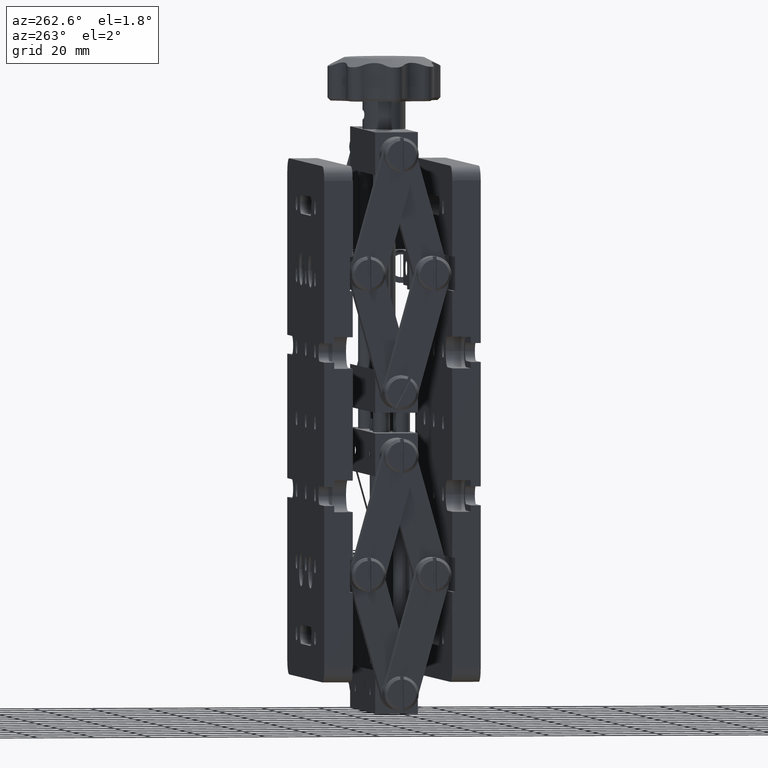
[diagram: clean part render]
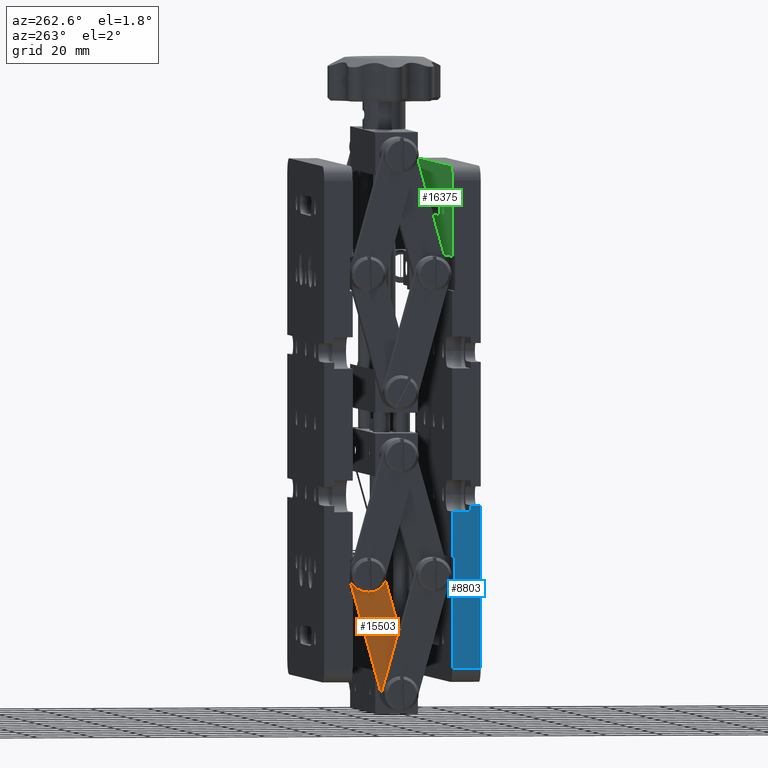
[diagram: same view with three faces highlighted in distinct colors, each labeled with its STEP entity id]
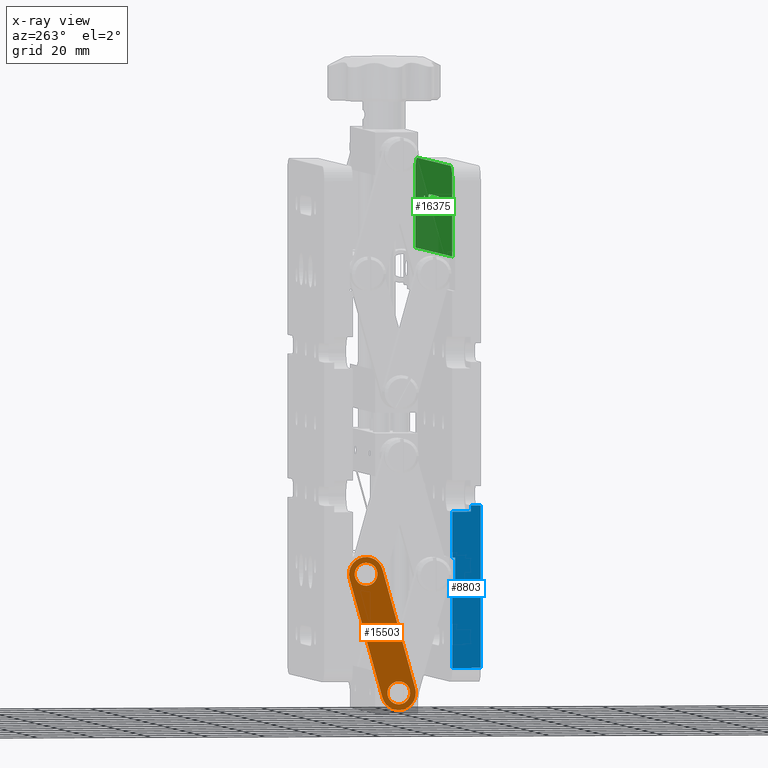
[diagram: x-ray of the same camera — body ghosted, the three highlighted faces saturated]
A machine part, auxiliary view with three faces highlighted in distinct colors.
The next image is the same camera in x-ray (body ghosted, the three faces saturated) — at least one of them is partly hidden behind the body in this view.
Their STEP definitions:

[orange] entity #15503 — the highlighted planar face has unit normal (-1, 0, -0).
#555 = EDGE_LOOP ( 'NONE', ( #16453, #11934, #15580, #12085, #6058 ) ) ;
#707 = FACE_OUTER_BOUND ( 'NONE', #555, .T. ) ;
#1246 = CARTESIAN_POINT ( 'NONE',  ( -39.99999999999983700, 27.93023255813719900, -56.35429599542309400 ) ) ;
#1317 = CARTESIAN_POINT ( 'NONE',  ( -39.99999999999970200, 11.71855600686484400, -92.32903078801037100 ) ) ;
#1333 = AXIS2_PLACEMENT_3D ( 'NONE', #5526, #3880, #9524 ) ;
#1615 = FACE_BOUND ( 'NONE', #15518, .T. ) ;
#2388 = CIRCLE ( 'NONE', #14121, 6.000000000000135000 ) ;
#3880 = DIRECTION ( 'NONE',  ( -1.000000000000000000, 1.536459749462286500E-016, -2.605466527482687500E-016 ) ) ;
#3909 = CARTESIAN_POINT ( 'NONE',  ( -39.99999999999989300, 23.28144399313487500, -95.53833311359112200 ) ) ;
#4029 = DIRECTION ( 'NONE',  ( -1.000000000000000000, 1.536459749462286500E-016, -2.605466527482687500E-016 ) ) ;
#4770 = DIRECTION ( 'NONE',  ( 2.099646146845540900E-016, -0.2674418604650561900, -0.9635739988558166300 ) ) ;
#4849 = DIRECTION ( 'NONE',  ( -1.000000000000000000, 1.536459749462286500E-016, -2.605466527482687500E-016 ) ) ;
#5209 = CIRCLE ( 'NONE', #1333, 4.000000000000085300 ) ;
#5244 = CARTESIAN_POINT ( 'NONE',  ( -39.99999999999968700, 34.78144399313254800, -54.10465116279010500 ) ) ;
#5459 = CARTESIAN_POINT ( 'NONE',  ( -39.99999999999983700, 28.99999999999744900, -52.49999999999975100 ) ) ;
#5526 = CARTESIAN_POINT ( 'NONE',  ( -39.99999999999965900, 17.49999999999981900, -93.93368195080088900 ) ) ;
#5564 = EDGE_LOOP ( 'NONE', ( #19756, #7580 ) ) ;
#5877 = CARTESIAN_POINT ( 'NONE',  ( -39.99999999999970200, 11.71855600686484400, -92.32903078801037100 ) ) ;
#6028 = CIRCLE ( 'NONE', #17884, 4.000000000000085300 ) ;
#6058 = ORIENTED_EDGE ( 'NONE', *, *, #16060, .T. ) ;
#6800 = CARTESIAN_POINT ( 'NONE',  ( -39.99999999999976600, 23.21855600686244300, -50.89534883720952500 ) ) ;
#7051 = VERTEX_POINT ( 'NONE', #14666 ) ;
#7182 = DIRECTION ( 'NONE',  ( 0.0000000000000000000, 0.2674418604650565200, 0.9635739988558166300 ) ) ;
#7580 = ORIENTED_EDGE ( 'NONE', *, *, #24089, .F. ) ;
#7834 = VERTEX_POINT ( 'NONE', #13309 ) ;
#7862 = EDGE_CURVE ( 'NONE', #7834, #10975, #9904, .T. ) ;
#7921 = DIRECTION ( 'NONE',  ( -1.000000000000000000, 1.536459749462286500E-016, -2.605466527482687500E-016 ) ) ;
#8196 = DIRECTION ( 'NONE',  ( -2.099646146845540700E-016, 0.2674418604650561400, 0.9635739988558166300 ) ) ;
#9457 = DIRECTION ( 'NONE',  ( -1.000000000000000000, 1.536459749462286500E-016, -2.605466527482687500E-016 ) ) ;
#9524 = DIRECTION ( 'NONE',  ( 0.0000000000000000000, 0.2674418604650565200, 0.9635739988558166300 ) ) ;
#9904 = CIRCLE ( 'NONE', #17069, 6.000000000000135000 ) ;
#10020 = EDGE_CURVE ( 'NONE', #14811, #24618, #13242, .T. ) ;
#10463 = VECTOR ( 'NONE', #21847, 1000.000000000000100 ) ;
#10514 = AXIS2_PLACEMENT_3D ( 'NONE', #14520, #24096, #8196 ) ;
#10916 = EDGE_CURVE ( 'NONE', #7051, #19568, #23586, .T. ) ;
#10975 = VERTEX_POINT ( 'NONE', #1317 ) ;
#11750 = DIRECTION ( 'NONE',  ( -1.000000000000000000, 1.536459749462286500E-016, -2.605466527482687500E-016 ) ) ;
#11807 = CARTESIAN_POINT ( 'NONE',  ( -39.99999999999965900, 17.49999999999981900, -93.93368195080088900 ) ) ;
#11863 = AXIS2_PLACEMENT_3D ( 'NONE', #5459, #9457, #13444 ) ;
#11934 = ORIENTED_EDGE ( 'NONE', *, *, #15659, .T. ) ;
#12085 = ORIENTED_EDGE ( 'NONE', *, *, #7862, .T. ) ;
#12563 = CARTESIAN_POINT ( 'NONE',  ( -39.99999999999983700, 28.99999999999744900, -52.49999999999975100 ) ) ;
#13085 = DIRECTION ( 'NONE',  ( -1.000000000000000000, 1.536459749462286500E-016, -2.605466527482687500E-016 ) ) ;
#13242 = CIRCLE ( 'NONE', #20475, 6.000000000000127900 ) ;
#13309 = CARTESIAN_POINT ( 'NONE',  ( -39.99999999999965900, 15.89534883720947900, -99.71512594393578900 ) ) ;
#13444 = DIRECTION ( 'NONE',  ( 0.0000000000000000000, 0.2674418604650565200, 0.9635739988558166300 ) ) ;
#14121 = AXIS2_PLACEMENT_3D ( 'NONE', #11807, #7921, #21882 ) ;
#14520 = CARTESIAN_POINT ( 'NONE',  ( -39.99999999999983700, 28.99999999999744900, -52.49999999999975100 ) ) ;
#14666 = CARTESIAN_POINT ( 'NONE',  ( -39.99999999999965900, 18.56976744186006600, -90.07938595537753200 ) ) ;
#14811 = VERTEX_POINT ( 'NONE', #6800 ) ;
#15503 = ADVANCED_FACE ( 'NONE', ( #1615, #21468, #707 ), #18179, .T. ) ;
#15518 = EDGE_LOOP ( 'NONE', ( #21895, #23142 ) ) ;
#15580 = ORIENTED_EDGE ( 'NONE', *, *, #25219, .T. ) ;
#15659 = EDGE_CURVE ( 'NONE', #24618, #23550, #20143, .T. ) ;
#16060 = EDGE_CURVE ( 'NONE', #10975, #14811, #18869, .T. ) ;
#16329 = CIRCLE ( 'NONE', #11863, 4.000000000000085300 ) ;
#16453 = ORIENTED_EDGE ( 'NONE', *, *, #10020, .T. ) ;
#17002 = VERTEX_POINT ( 'NONE', #1246 ) ;
#17069 = AXIS2_PLACEMENT_3D ( 'NONE', #25576, #4029, #25747 ) ;
#17244 = CARTESIAN_POINT ( 'NONE',  ( -39.99999999999983700, 30.06976744185769600, -48.64570400457640200 ) ) ;
#17498 = CARTESIAN_POINT ( 'NONE',  ( -39.99999999999983700, 28.99999999999744900, -52.49999999999975100 ) ) ;
#17729 = EDGE_CURVE ( 'NONE', #20981, #17002, #16329, .T. ) ;
#17884 = AXIS2_PLACEMENT_3D ( 'NONE', #12563, #4849, #18757 ) ;
#18179 = PLANE ( 'NONE',  #10514 ) ;
#18510 = EDGE_CURVE ( 'NONE', #17002, #20981, #6028, .T. ) ;
#18757 = DIRECTION ( 'NONE',  ( 0.0000000000000000000, 0.2674418604650565200, 0.9635739988558166300 ) ) ;
#18869 = LINE ( 'NONE', #5877, #10463 ) ;
#19568 = VERTEX_POINT ( 'NONE', #23125 ) ;
#19756 = ORIENTED_EDGE ( 'NONE', *, *, #10916, .F. ) ;
#20143 = LINE ( 'NONE', #20855, #22309 ) ;
#20475 = AXIS2_PLACEMENT_3D ( 'NONE', #17498, #11750, #25501 ) ;
#20855 = CARTESIAN_POINT ( 'NONE',  ( -39.99999999999989300, 23.28144399313487500, -95.53833311359112200 ) ) ;
#20981 = VERTEX_POINT ( 'NONE', #17244 ) ;
#21154 = AXIS2_PLACEMENT_3D ( 'NONE', #22832, #13085, #7182 ) ;
#21468 = FACE_BOUND ( 'NONE', #5564, .T. ) ;
#21847 = DIRECTION ( 'NONE',  ( -2.099646146845540900E-016, 0.2674418604650561900, 0.9635739988558166300 ) ) ;
#21882 = DIRECTION ( 'NONE',  ( 0.0000000000000000000, 0.2674418604650562500, 0.9635739988558166300 ) ) ;
#21895 = ORIENTED_EDGE ( 'NONE', *, *, #17729, .F. ) ;
#22309 = VECTOR ( 'NONE', #4770, 1000.000000000000100 ) ;
#22832 = CARTESIAN_POINT ( 'NONE',  ( -39.99999999999965900, 17.49999999999981900, -93.93368195080088900 ) ) ;
#23125 = CARTESIAN_POINT ( 'NONE',  ( -39.99999999999965900, 16.43023255813956900, -97.78797794622423100 ) ) ;
#23142 = ORIENTED_EDGE ( 'NONE', *, *, #18510, .F. ) ;
#23550 = VERTEX_POINT ( 'NONE', #3909 ) ;
#23586 = CIRCLE ( 'NONE', #21154, 4.000000000000085300 ) ;
#24089 = EDGE_CURVE ( 'NONE', #19568, #7051, #5209, .T. ) ;
#24096 = DIRECTION ( 'NONE',  ( -1.000000000000000000, 1.536459749462303300E-016, -2.605466527482626900E-016 ) ) ;
#24618 = VERTEX_POINT ( 'NONE', #5244 ) ;
#25219 = EDGE_CURVE ( 'NONE', #23550, #7834, #2388, .T. ) ;
#25501 = DIRECTION ( 'NONE',  ( 0.0000000000000000000, 0.2674418604650565200, 0.9635739988558165200 ) ) ;
#25576 = CARTESIAN_POINT ( 'NONE',  ( -39.99999999999965900, 17.49999999999981900, -93.93368195080088900 ) ) ;
#25747 = DIRECTION ( 'NONE',  ( 0.0000000000000000000, 0.2674418604650562500, 0.9635739988558166300 ) ) ;

[blue] entity #8803 — the highlighted planar face has unit normal (1, -0, 0).
#152 = CARTESIAN_POINT ( 'NONE',  ( -50.00000000000000000, -0.9999999999999970000, -58.50000000000000000 ) ) ;
#693 = LINE ( 'NONE', #2976, #16507 ) ;
#898 = LINE ( 'NONE', #10192, #4902 ) ;
#1721 = ORIENTED_EDGE ( 'NONE', *, *, #8544, .T. ) ;
#1770 = VERTEX_POINT ( 'NONE', #14113 ) ;
#2283 = DIRECTION ( 'NONE',  ( -2.775557561562891800E-016, 3.227577155063918600E-016, 1.000000000000000000 ) ) ;
#2491 = VERTEX_POINT ( 'NONE', #18609 ) ;
#2976 = CARTESIAN_POINT ( 'NONE',  ( -50.00000000000000700, -12.99999999999999300, -28.30000000000001500 ) ) ;
#3100 = VECTOR ( 'NONE', #15868, 1000.000000000000000 ) ;
#3574 = CARTESIAN_POINT ( 'NONE',  ( -50.00000000000000700, 5.015101860681137500E-015, -30.49999999999965900 ) ) ;
#4309 = EDGE_CURVE ( 'NONE', #2491, #16266, #693, .T. ) ;
#4526 = CARTESIAN_POINT ( 'NONE',  ( -49.99999999999996400, 3.094693453418092900E-015, -90.00000000000004300 ) ) ;
#4680 = CARTESIAN_POINT ( 'NONE',  ( -49.99999999999997200, 3.256072311171288500E-015, -85.00000000000002800 ) ) ;
#4902 = VECTOR ( 'NONE', #12259, 1000.000000000000000 ) ;
#5053 = EDGE_CURVE ( 'NONE', #10877, #8434, #8369, .T. ) ;
#5115 = ORIENTED_EDGE ( 'NONE', *, *, #17714, .F. ) ;
#5238 = ORIENTED_EDGE ( 'NONE', *, *, #22315, .T. ) ;
#5934 = CARTESIAN_POINT ( 'NONE',  ( -49.99999999999997200, -9.999999999999998200, -85.00000000000002800 ) ) ;
#6138 = DIRECTION ( 'NONE',  ( 1.000000000000000000, -3.646332249122912700E-016, 4.317533984653388500E-016 ) ) ;
#6389 = PLANE ( 'NONE',  #16623 ) ;
#6526 = DIRECTION ( 'NONE',  ( 4.317533984653387500E-016, -3.227577155063918100E-016, -1.000000000000000000 ) ) ;
#6896 = EDGE_CURVE ( 'NONE', #23502, #23106, #7277, .T. ) ;
#7277 = LINE ( 'NONE', #22500, #8549 ) ;
#7333 = EDGE_LOOP ( 'NONE', ( #18288, #15837, #24997, #5238, #11285, #12496, #5115, #21641, #1721, #19880 ) ) ;
#7516 = LINE ( 'NONE', #19965, #24014 ) ;
#8369 = LINE ( 'NONE', #5934, #3100 ) ;
#8434 = VERTEX_POINT ( 'NONE', #25334 ) ;
#8460 = VERTEX_POINT ( 'NONE', #17418 ) ;
#8544 = EDGE_CURVE ( 'NONE', #1770, #10877, #19162, .T. ) ;
#8549 = VECTOR ( 'NONE', #14683, 1000.000000000000000 ) ;
#8803 = ADVANCED_FACE ( 'NONE', ( #21015 ), #6389, .F. ) ;
#9276 = VECTOR ( 'NONE', #24071, 1000.000000000000000 ) ;
#9277 = EDGE_CURVE ( 'NONE', #8460, #16266, #7516, .T. ) ;
#9286 = DIRECTION ( 'NONE',  ( -2.775557561562891800E-016, 3.227577155063918600E-016, 1.000000000000000000 ) ) ;
#10192 = CARTESIAN_POINT ( 'NONE',  ( -50.00000000000000000, -0.9999999999999965600, -46.50000000000000700 ) ) ;
#10207 = CARTESIAN_POINT ( 'NONE',  ( -49.99999999999996400, -9.999999999999998200, -90.00000000000004300 ) ) ;
#10409 = VECTOR ( 'NONE', #9286, 1000.000000000000000 ) ;
#10877 = VERTEX_POINT ( 'NONE', #4680 ) ;
#11285 = ORIENTED_EDGE ( 'NONE', *, *, #6896, .T. ) ;
#12259 = DIRECTION ( 'NONE',  ( -2.062003648775262200E-016, 1.000000000000000000, 3.550334870570308700E-016 ) ) ;
#12496 = ORIENTED_EDGE ( 'NONE', *, *, #21240, .F. ) ;
#14113 = CARTESIAN_POINT ( 'NONE',  ( -50.00000000000000000, 4.111380257263230200E-015, -58.50000000000000000 ) ) ;
#14683 = DIRECTION ( 'NONE',  ( 4.317533984653387500E-016, -3.227577155063918100E-016, -1.000000000000000000 ) ) ;
#15298 = VECTOR ( 'NONE', #19421, 1000.000000000000000 ) ;
#15837 = ORIENTED_EDGE ( 'NONE', *, *, #4309, .T. ) ;
#15868 = DIRECTION ( 'NONE',  ( 2.062003648775262200E-016, -1.000000000000000000, -3.550334870570308700E-016 ) ) ;
#15886 = VECTOR ( 'NONE', #23941, 1000.000000000000000 ) ;
#16072 = VECTOR ( 'NONE', #6526, 1000.000000000000000 ) ;
#16266 = VERTEX_POINT ( 'NONE', #18035 ) ;
#16507 = VECTOR ( 'NONE', #16849, 1000.000000000000000 ) ;
#16623 = AXIS2_PLACEMENT_3D ( 'NONE', #10207, #6138, #20119 ) ;
#16849 = DIRECTION ( 'NONE',  ( -2.062003648775264000E-016, 1.000000000000000000, 3.550334870570309200E-016 ) ) ;
#17418 = CARTESIAN_POINT ( 'NONE',  ( -50.00000000000000700, -6.499999999999994700, -30.49999999999965900 ) ) ;
#17714 = EDGE_CURVE ( 'NONE', #24678, #18902, #20366, .T. ) ;
#18035 = CARTESIAN_POINT ( 'NONE',  ( -50.00000000000000700, -6.499999999999994700, -28.30000000000001500 ) ) ;
#18275 = CARTESIAN_POINT ( 'NONE',  ( -49.99999999999997900, 4.498689515870899100E-015, -46.50000000000002100 ) ) ;
#18288 = ORIENTED_EDGE ( 'NONE', *, *, #23512, .F. ) ;
#18609 = CARTESIAN_POINT ( 'NONE',  ( -50.00000000000000700, -9.999999999999996400, -28.30000000000001500 ) ) ;
#18644 = LINE ( 'NONE', #152, #15886 ) ;
#18902 = VERTEX_POINT ( 'NONE', #24379 ) ;
#19162 = LINE ( 'NONE', #4526, #16072 ) ;
#19421 = DIRECTION ( 'NONE',  ( -2.062003648775264000E-016, 1.000000000000000000, 3.550334870570309200E-016 ) ) ;
#19456 = CARTESIAN_POINT ( 'NONE',  ( -49.99999999999996400, -9.999999999999998200, -90.00000000000004300 ) ) ;
#19880 = ORIENTED_EDGE ( 'NONE', *, *, #5053, .T. ) ;
#19965 = CARTESIAN_POINT ( 'NONE',  ( -50.00000000000000700, -6.499999999999994700, -30.49999999999965900 ) ) ;
#20119 = DIRECTION ( 'NONE',  ( -4.317533984653387500E-016, 3.227577155063918100E-016, 1.000000000000000000 ) ) ;
#20334 = EDGE_CURVE ( 'NONE', #24678, #1770, #18644, .T. ) ;
#20366 = LINE ( 'NONE', #21192, #10409 ) ;
#21015 = FACE_OUTER_BOUND ( 'NONE', #7333, .T. ) ;
#21192 = CARTESIAN_POINT ( 'NONE',  ( -50.00000000000000000, -0.9999999999999970000, -58.50000000000000000 ) ) ;
#21240 = EDGE_CURVE ( 'NONE', #18902, #23106, #898, .T. ) ;
#21637 = CARTESIAN_POINT ( 'NONE',  ( -50.00000000000000000, -0.9999999999999970000, -58.50000000000000000 ) ) ;
#21641 = ORIENTED_EDGE ( 'NONE', *, *, #20334, .T. ) ;
#22315 = EDGE_CURVE ( 'NONE', #8460, #23502, #24601, .T. ) ;
#22500 = CARTESIAN_POINT ( 'NONE',  ( -49.99999999999996400, 3.094693453418092900E-015, -90.00000000000004300 ) ) ;
#23106 = VERTEX_POINT ( 'NONE', #18275 ) ;
#23502 = VERTEX_POINT ( 'NONE', #3574 ) ;
#23512 = EDGE_CURVE ( 'NONE', #2491, #8434, #24208, .T. ) ;
#23941 = DIRECTION ( 'NONE',  ( -2.062003648775262200E-016, 1.000000000000000000, 3.550334870570308700E-016 ) ) ;
#24014 = VECTOR ( 'NONE', #2283, 1000.000000000000000 ) ;
#24071 = DIRECTION ( 'NONE',  ( 4.317533984653387500E-016, -3.227577155063918100E-016, -1.000000000000000000 ) ) ;
#24208 = LINE ( 'NONE', #19456, #9276 ) ;
#24379 = CARTESIAN_POINT ( 'NONE',  ( -50.00000000000000000, -0.9999999999999965600, -46.50000000000000700 ) ) ;
#24601 = LINE ( 'NONE', #25164, #15298 ) ;
#24678 = VERTEX_POINT ( 'NONE', #21637 ) ;
#24997 = ORIENTED_EDGE ( 'NONE', *, *, #9277, .F. ) ;
#25164 = CARTESIAN_POINT ( 'NONE',  ( -50.00000000000000700, -6.499999999999994700, -30.49999999999965900 ) ) ;
#25334 = CARTESIAN_POINT ( 'NONE',  ( -49.99999999999997200, -9.999999999999998200, -85.00000000000002800 ) ) ;

[green] entity #16375 — the highlighted planar face has unit normal (-0, -1, -0).
#246 = DIRECTION ( 'NONE',  ( -3.646332249122913700E-016, -1.000000000000000000, -3.550334870570310200E-016 ) ) ;
#390 = CARTESIAN_POINT ( 'NONE',  ( 44.99999999999996400, -2.656121021873728500E-015, 84.99999999999997200 ) ) ;
#667 = CARTESIAN_POINT ( 'NONE',  ( -15.80000000000000800, 3.240099885446010100E-015, 75.00000000000000000 ) ) ;
#696 = CIRCLE ( 'NONE', #801, 3.299999999999983400 ) ;
#790 = CARTESIAN_POINT ( 'NONE',  ( -50.00000000000004300, 7.135437746769820700E-014, 89.99999999999997200 ) ) ;
#801 = AXIS2_PLACEMENT_3D ( 'NONE', #22035, #4153, #21939 ) ;
#864 = VERTEX_POINT ( 'NONE', #24524 ) ;
#896 = DIRECTION ( 'NONE',  ( 4.317533984653387500E-016, -3.227577155063918100E-016, -1.000000000000000000 ) ) ;
#1015 = EDGE_CURVE ( 'NONE', #13951, #5687, #12552, .T. ) ;
#1163 = DIRECTION ( 'NONE',  ( -2.062003648775262200E-016, 1.000000000000000000, 3.550334870570308700E-016 ) ) ;
#1268 = CARTESIAN_POINT ( 'NONE',  ( 12.49999999999998800, 8.142945969369226500E-016, 71.70000000000001700 ) ) ;
#1572 = LINE ( 'NONE', #12708, #8994 ) ;
#1675 = DIRECTION ( 'NONE',  ( 2.062003648775262200E-016, -1.000000000000000000, -3.550334870570308700E-016 ) ) ;
#1755 = CARTESIAN_POINT ( 'NONE',  ( -25.00000000000002100, 5.420439312785748200E-015, 75.00000000000001400 ) ) ;
#1898 = AXIS2_PLACEMENT_3D ( 'NONE', #19027, #1163, #11007 ) ;
#1919 = DIRECTION ( 'NONE',  ( -1.000000000000000000, 3.646332249122915200E-016, 0.0000000000000000000 ) ) ;
#1988 = DIRECTION ( 'NONE',  ( -1.000000000000000000, 3.646332249122917100E-016, 0.0000000000000000000 ) ) ;
#2262 = DIRECTION ( 'NONE',  ( -1.000000000000000000, 3.646332249122914700E-016, -2.775557561562891400E-016 ) ) ;
#2450 = FACE_BOUND ( 'NONE', #20128, .T. ) ;
#2581 = VERTEX_POINT ( 'NONE', #2587 ) ;
#2587 = CARTESIAN_POINT ( 'NONE',  ( -50.00000000000003600, 7.119299860994500600E-014, 84.99999999999990100 ) ) ;
#2683 = DIRECTION ( 'NONE',  ( 1.000000000000000000, -3.646332249122915700E-016, 2.775557561562891400E-016 ) ) ;
#3406 = CARTESIAN_POINT ( 'NONE',  ( 12.49999999999998600, 1.027314689171139400E-015, 78.29999999999996900 ) ) ;
#3632 = EDGE_LOOP ( 'NONE', ( #18093, #5476, #21019, #14338, #23086, #5300 ) ) ;
#3759 = LINE ( 'NONE', #5605, #8087 ) ;
#3913 = CARTESIAN_POINT ( 'NONE',  ( 44.99999999999995700, -2.494742164120532500E-015, 89.99999999999998600 ) ) ;
#3947 = LINE ( 'NONE', #25259, #19154 ) ;
#4153 = DIRECTION ( 'NONE',  ( 2.062003648775262200E-016, -1.000000000000000000, -3.550334870570308700E-016 ) ) ;
#4275 = CIRCLE ( 'NONE', #25012, 2.500000000000002200 ) ;
#4535 = AXIS2_PLACEMENT_3D ( 'NONE', #10194, #246, #2262 ) ;
#4853 = DIRECTION ( 'NONE',  ( -1.000000000000000000, 3.646332249122915200E-016, 0.0000000000000000000 ) ) ;
#5009 = AXIS2_PLACEMENT_3D ( 'NONE', #17185, #11341, #7196 ) ;
#5160 = AXIS2_PLACEMENT_3D ( 'NONE', #13987, #19567, #9657 ) ;
#5300 = ORIENTED_EDGE ( 'NONE', *, *, #8966, .T. ) ;
#5476 = ORIENTED_EDGE ( 'NONE', *, *, #16162, .F. ) ;
#5605 = CARTESIAN_POINT ( 'NONE',  ( 50.00000000000004300, -7.135437746769820700E-014, -90.00000000000001400 ) ) ;
#5654 = DIRECTION ( 'NONE',  ( 2.062003648775262200E-016, -1.000000000000000000, -3.550334870570308700E-016 ) ) ;
#5687 = VERTEX_POINT ( 'NONE', #9730 ) ;
#5741 = CARTESIAN_POINT ( 'NONE',  ( 24.99999999999998200, -5.790735801898724200E-016, 75.00000000000001400 ) ) ;
#5918 = EDGE_CURVE ( 'NONE', #23322, #9477, #1572, .T. ) ;
#6301 = CIRCLE ( 'NONE', #10450, 4.999999999999997300 ) ;
#6436 = ORIENTED_EDGE ( 'NONE', *, *, #10607, .T. ) ;
#6443 = VECTOR ( 'NONE', #12630, 1000.000000000000000 ) ;
#6704 = VECTOR ( 'NONE', #15655, 1000.000000000000000 ) ;
#7052 = FACE_BOUND ( 'NONE', #15015, .T. ) ;
#7196 = DIRECTION ( 'NONE',  ( 1.000000000000000000, -3.646332249122914700E-016, 0.0000000000000000000 ) ) ;
#7442 = ORIENTED_EDGE ( 'NONE', *, *, #1015, .T. ) ;
#7777 = ORIENTED_EDGE ( 'NONE', *, *, #5918, .T. ) ;
#8087 = VECTOR ( 'NONE', #9430, 1000.000000000000000 ) ;
#8821 = AXIS2_PLACEMENT_3D ( 'NONE', #5741, #5654, #9987 ) ;
#8966 = EDGE_CURVE ( 'NONE', #11568, #864, #6301, .T. ) ;
#8994 = VECTOR ( 'NONE', #2683, 1000.000000000000000 ) ;
#9039 = CARTESIAN_POINT ( 'NONE',  ( -12.50000000000002500, 3.814051043424734200E-015, 71.70000000000001700 ) ) ;
#9430 = DIRECTION ( 'NONE',  ( -4.317533984653387500E-016, 3.227577155063918100E-016, 1.000000000000000000 ) ) ;
#9437 = ORIENTED_EDGE ( 'NONE', *, *, #17564, .T. ) ;
#9477 = VERTEX_POINT ( 'NONE', #1268 ) ;
#9657 = DIRECTION ( 'NONE',  ( -1.000000000000000000, 3.646332249122916700E-016, 0.0000000000000000000 ) ) ;
#9730 = CARTESIAN_POINT ( 'NONE',  ( -27.50000000000002500, 6.332022375066478400E-015, 75.00000000000001400 ) ) ;
#9987 = DIRECTION ( 'NONE',  ( -1.000000000000000000, 3.646332249122915200E-016, 0.0000000000000000000 ) ) ;
#10194 = CARTESIAN_POINT ( 'NONE',  ( 0.0000000000000000000, 0.0000000000000000000, -0.0000000000000000000 ) ) ;
#10450 = AXIS2_PLACEMENT_3D ( 'NONE', #390, #14245, #1988 ) ;
#10462 = VERTEX_POINT ( 'NONE', #15241 ) ;
#10602 = CARTESIAN_POINT ( 'NONE',  ( -49.99999999999996400, 3.094693453418092900E-015, -90.00000000000004300 ) ) ;
#10607 = EDGE_CURVE ( 'NONE', #16256, #24214, #16727, .T. ) ;
#10612 = EDGE_CURVE ( 'NONE', #5687, #13951, #16111, .T. ) ;
#11007 = DIRECTION ( 'NONE',  ( -1.000000000000000000, 3.646332249122921600E-016, 0.0000000000000000000 ) ) ;
#11069 = VERTEX_POINT ( 'NONE', #21433 ) ;
#11287 = EDGE_CURVE ( 'NONE', #2581, #21350, #14288, .T. ) ;
#11341 = DIRECTION ( 'NONE',  ( 2.062003648775262200E-016, -1.000000000000000000, -3.550334870570308700E-016 ) ) ;
#11382 = FACE_BOUND ( 'NONE', #12821, .T. ) ;
#11568 = VERTEX_POINT ( 'NONE', #3913 ) ;
#12099 = PLANE ( 'NONE',  #4535 ) ;
#12552 = CIRCLE ( 'NONE', #14726, 2.500000000000002200 ) ;
#12630 = DIRECTION ( 'NONE',  ( -1.000000000000000000, 3.646332249122915200E-016, -1.387778780781445700E-016 ) ) ;
#12708 = CARTESIAN_POINT ( 'NONE',  ( 12.49999999999998800, 8.142945969369226500E-016, 71.70000000000001700 ) ) ;
#12821 = EDGE_LOOP ( 'NONE', ( #7777, #9437, #25590, #12942, #16393 ) ) ;
#12942 = ORIENTED_EDGE ( 'NONE', *, *, #19877, .T. ) ;
#13332 = DIRECTION ( 'NONE',  ( 1.000000000000000000, -3.646332249122912700E-016, 4.163336342344336500E-016 ) ) ;
#13769 = DIRECTION ( 'NONE',  ( 2.062003648775262200E-016, -1.000000000000000000, -3.550334870570308700E-016 ) ) ;
#13951 = VERTEX_POINT ( 'NONE', #19860 ) ;
#13987 = CARTESIAN_POINT ( 'NONE',  ( -25.00000000000002100, 5.420439312785748200E-015, 75.00000000000001400 ) ) ;
#14147 = CIRCLE ( 'NONE', #23547, 3.299999999999976700 ) ;
#14245 = DIRECTION ( 'NONE',  ( -2.062003648775262200E-016, 1.000000000000000000, 3.550334870570308700E-016 ) ) ;
#14288 = CIRCLE ( 'NONE', #1898, 4.999999999999997300 ) ;
#14338 = ORIENTED_EDGE ( 'NONE', *, *, #11287, .T. ) ;
#14650 = CIRCLE ( 'NONE', #5009, 3.299999999999983400 ) ;
#14726 = AXIS2_PLACEMENT_3D ( 'NONE', #1755, #1675, #19558 ) ;
#15015 = EDGE_LOOP ( 'NONE', ( #20769, #7442 ) ) ;
#15241 = CARTESIAN_POINT ( 'NONE',  ( 12.49999999999998600, 1.027314689171139400E-015, 78.29999999999996900 ) ) ;
#15578 = VERTEX_POINT ( 'NONE', #667 ) ;
#15655 = DIRECTION ( 'NONE',  ( -1.000000000000000000, 3.646332249122916200E-016, 2.775557561562889400E-016 ) ) ;
#15710 = CARTESIAN_POINT ( 'NONE',  ( 24.99999999999998200, -5.790735801898724200E-016, 75.00000000000001400 ) ) ;
#15745 = LINE ( 'NONE', #3406, #6704 ) ;
#15857 = CARTESIAN_POINT ( 'NONE',  ( 50.00000000000000000, -4.111380257263230200E-015, 58.50000000000001400 ) ) ;
#16033 = CARTESIAN_POINT ( 'NONE',  ( 27.49999999999998200, -6.357266799605636200E-017, 75.00000000000001400 ) ) ;
#16039 = EDGE_CURVE ( 'NONE', #24214, #16256, #4275, .T. ) ;
#16083 = FACE_OUTER_BOUND ( 'NONE', #3632, .T. ) ;
#16111 = CIRCLE ( 'NONE', #5160, 2.500000000000002200 ) ;
#16162 = EDGE_CURVE ( 'NONE', #11069, #21682, #3947, .T. ) ;
#16256 = VERTEX_POINT ( 'NONE', #16033 ) ;
#16375 = ADVANCED_FACE ( 'NONE', ( #7052, #2450, #11382, #16083 ), #12099, .F. ) ;
#16393 = ORIENTED_EDGE ( 'NONE', *, *, #22096, .T. ) ;
#16727 = CIRCLE ( 'NONE', #8821, 2.500000000000002200 ) ;
#17012 = EDGE_CURVE ( 'NONE', #10462, #19725, #15745, .T. ) ;
#17185 = CARTESIAN_POINT ( 'NONE',  ( -12.50000000000002500, 3.920561089541842800E-015, 75.00000000000000000 ) ) ;
#17564 = EDGE_CURVE ( 'NONE', #9477, #10462, #14147, .T. ) ;
#18093 = ORIENTED_EDGE ( 'NONE', *, *, #20162, .F. ) ;
#18539 = EDGE_CURVE ( 'NONE', #2581, #11069, #24070, .T. ) ;
#18932 = CARTESIAN_POINT ( 'NONE',  ( 12.49999999999997700, 9.208046430540326400E-016, 75.00000000000000000 ) ) ;
#19027 = CARTESIAN_POINT ( 'NONE',  ( -45.00000000000004300, 7.059304732064743900E-014, 84.99999999999995700 ) ) ;
#19154 = VECTOR ( 'NONE', #13332, 1000.000000000000000 ) ;
#19558 = DIRECTION ( 'NONE',  ( -1.000000000000000000, 3.646332249122916700E-016, 0.0000000000000000000 ) ) ;
#19567 = DIRECTION ( 'NONE',  ( 2.062003648775262200E-016, -1.000000000000000000, -3.550334870570308700E-016 ) ) ;
#19725 = VERTEX_POINT ( 'NONE', #19727 ) ;
#19727 = CARTESIAN_POINT ( 'NONE',  ( -12.50000000000002700, 4.027071135658952100E-015, 78.29999999999999700 ) ) ;
#19860 = CARTESIAN_POINT ( 'NONE',  ( -22.50000000000002100, 5.935940224979563700E-015, 75.00000000000001400 ) ) ;
#19877 = EDGE_CURVE ( 'NONE', #19725, #15578, #696, .T. ) ;
#20128 = EDGE_LOOP ( 'NONE', ( #25692, #6436 ) ) ;
#20162 = EDGE_CURVE ( 'NONE', #21682, #864, #3759, .T. ) ;
#20769 = ORIENTED_EDGE ( 'NONE', *, *, #10612, .T. ) ;
#20788 = EDGE_CURVE ( 'NONE', #11568, #21350, #22021, .T. ) ;
#21019 = ORIENTED_EDGE ( 'NONE', *, *, #18539, .F. ) ;
#21350 = VERTEX_POINT ( 'NONE', #22791 ) ;
#21433 = CARTESIAN_POINT ( 'NONE',  ( -50.00000000000002800, 7.887645528688013400E-015, 58.49999999999997900 ) ) ;
#21682 = VERTEX_POINT ( 'NONE', #15857 ) ;
#21939 = DIRECTION ( 'NONE',  ( 1.000000000000000000, -3.646332249122914700E-016, 0.0000000000000000000 ) ) ;
#22021 = LINE ( 'NONE', #790, #6443 ) ;
#22035 = CARTESIAN_POINT ( 'NONE',  ( -12.50000000000002500, 3.920561089541842800E-015, 75.00000000000000000 ) ) ;
#22096 = EDGE_CURVE ( 'NONE', #15578, #23322, #14650, .T. ) ;
#22791 = CARTESIAN_POINT ( 'NONE',  ( -45.00000000000005000, 7.075442617840064100E-014, 89.99999999999997200 ) ) ;
#23086 = ORIENTED_EDGE ( 'NONE', *, *, #20788, .F. ) ;
#23322 = VERTEX_POINT ( 'NONE', #9039 ) ;
#23547 = AXIS2_PLACEMENT_3D ( 'NONE', #18932, #24857, #4853 ) ;
#24070 = LINE ( 'NONE', #10602, #24679 ) ;
#24128 = CARTESIAN_POINT ( 'NONE',  ( 22.49999999999997900, 3.325094820908571400E-016, 75.00000000000001400 ) ) ;
#24214 = VERTEX_POINT ( 'NONE', #24128 ) ;
#24524 = CARTESIAN_POINT ( 'NONE',  ( 49.99999999999997200, -3.256072311171292000E-015, 84.99999999999992900 ) ) ;
#24679 = VECTOR ( 'NONE', #896, 1000.000000000000000 ) ;
#24857 = DIRECTION ( 'NONE',  ( 2.062003648775262200E-016, -1.000000000000000000, -3.550334870570308700E-016 ) ) ;
#25012 = AXIS2_PLACEMENT_3D ( 'NONE', #15710, #13769, #1919 ) ;
#25259 = CARTESIAN_POINT ( 'NONE',  ( -50.00000000000002800, 7.887645528688013400E-015, 58.49999999999997900 ) ) ;
#25590 = ORIENTED_EDGE ( 'NONE', *, *, #17012, .T. ) ;
#25692 = ORIENTED_EDGE ( 'NONE', *, *, #16039, .T. ) ;